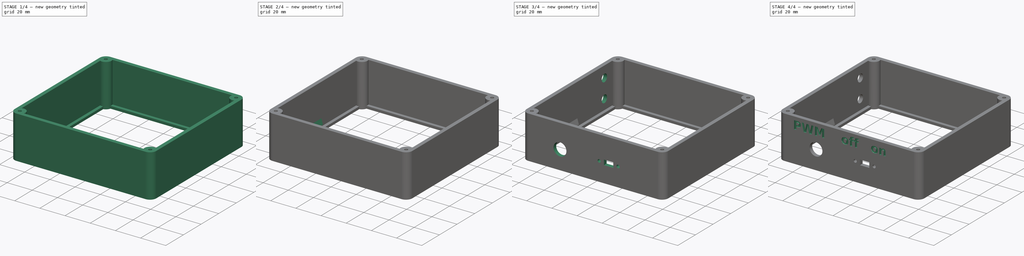
[diagram: build sequence overview — one tinted view per stage of 4, left to right]
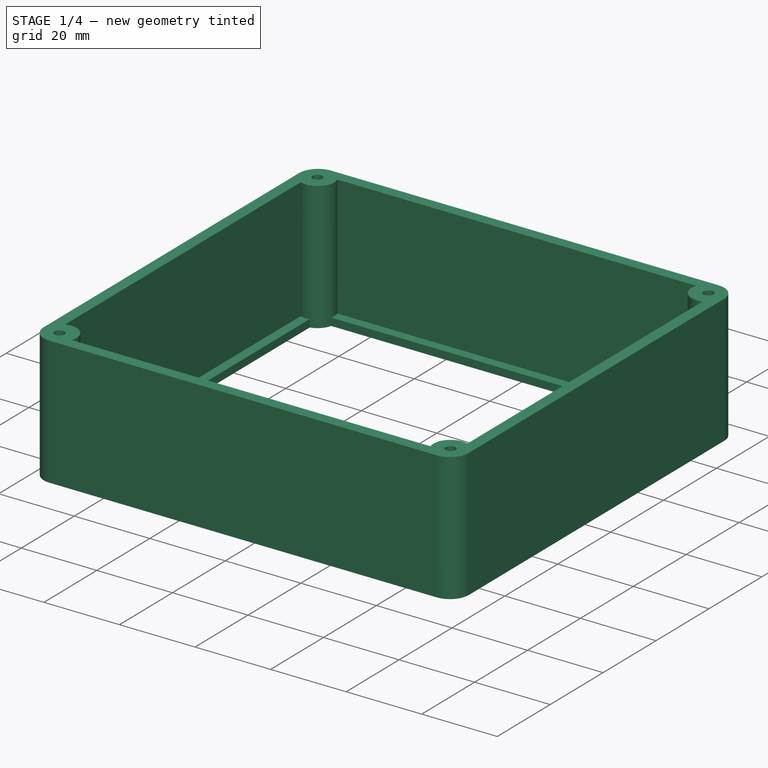
[diagram: stage 1 of 4 — iso view after this stage's code; geometry added in this stage tinted green]
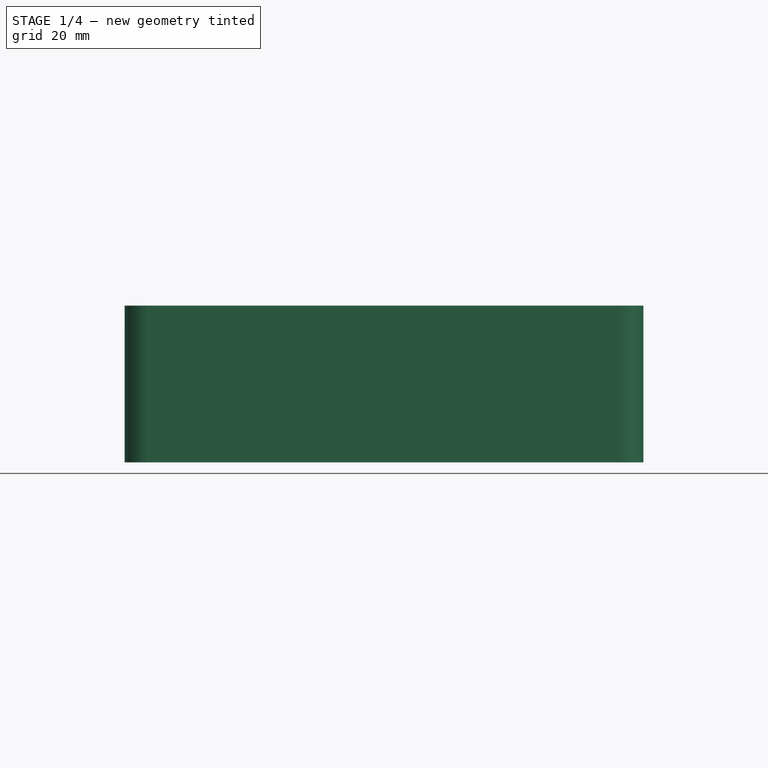
[diagram: stage 1 of 4 — front view after this stage's code; geometry added in this stage tinted green]
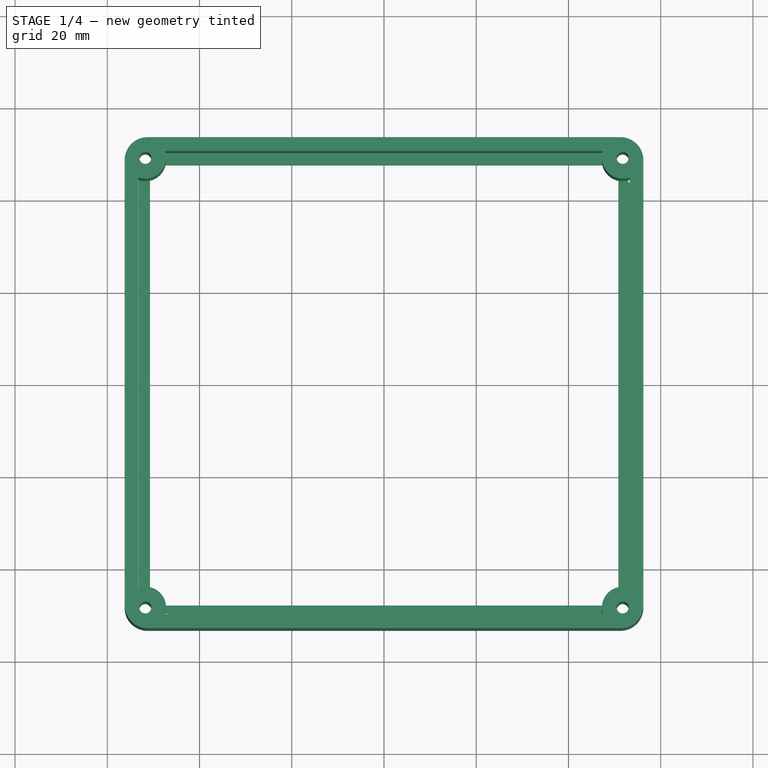
[diagram: stage 1 of 4 — top view after this stage's code; geometry added in this stage tinted green]
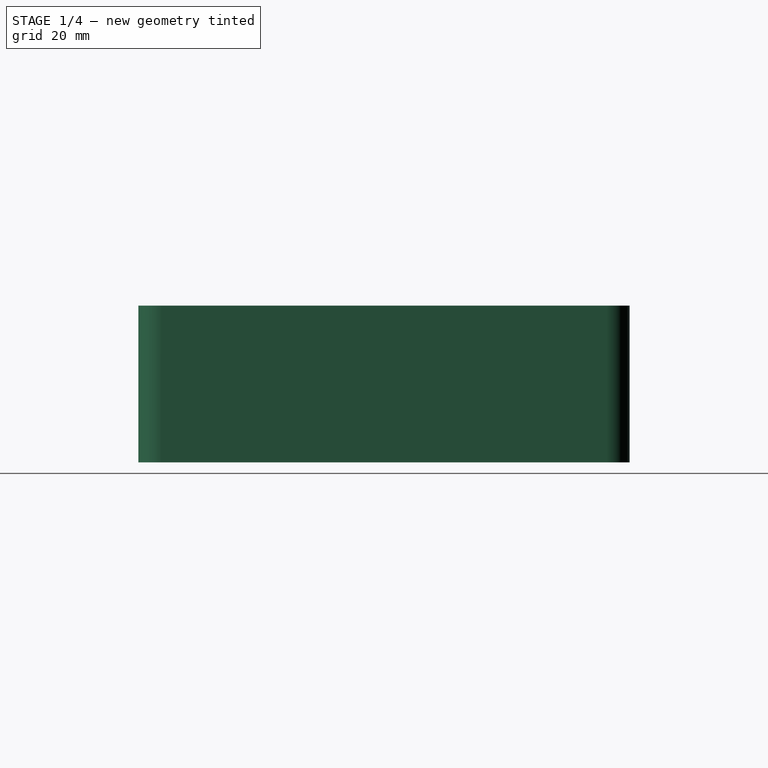
[diagram: stage 1 of 4 — right view after this stage's code; geometry added in this stage tinted green]
FCSTD DOCUMENT  (FreeCAD 0.21R33668 +26 (Git))
Label: mini-evse-housing
License: All rights reserved
LicenseURL: https://en.wikipedia.org/wiki/All_rights_reserved
objects: Sketcher::SketchObject×6, PartDesign::Pocket×5, PartDesign::Pad×4, Part::Part2DObjectPython×3, PartDesign::Body×1
note: 28 computed .brp shape members not serialized (recipe doc carries the construction recipe); baked Part::Feature solids carry a one-line shape summary decoded from their .brp

FEATURE [Sketcher::SketchObject] Sketch
  FullyConstrained = true
  MapMode = 5
  Support = -> [XY_Plane]
  sketch-geometry (22):
    g0: ArcOfCircle CenterX=-51.25 CenterY=48.25 CenterZ=0 NormalX=0 NormalY=0 NormalZ=1 AngleXU=0 Radius=5 StartAngle=1.5708 EndAngle=3.14159
    g1: LineSegment StartX=-51.25 StartY=53.25 StartZ=0 EndX=51.25 EndY=53.25 EndZ=0
    g2: ArcOfCircle CenterX=51.25 CenterY=48.25 CenterZ=0 NormalX=0 NormalY=0 NormalZ=1 AngleXU=0 Radius=5 StartAngle=1e-16 EndAngle=1.5708
    g3: LineSegment StartX=56.25 StartY=48.25 StartZ=0 EndX=56.25 EndY=-48.25 EndZ=0
    g4: ArcOfCircle CenterX=51.25 CenterY=-48.25 CenterZ=0 NormalX=0 NormalY=0 NormalZ=1 AngleXU=0 Radius=5 StartAngle=4.71239 EndAngle=6.28319
    g5: LineSegment StartX=51.25 StartY=-53.25 StartZ=0 EndX=-51.25 EndY=-53.25 EndZ=0
    g6: ArcOfCircle CenterX=-51.25 CenterY=-48.25 CenterZ=0 NormalX=0 NormalY=0 NormalZ=1 AngleXU=0 Radius=5 StartAngle=3.14159 EndAngle=4.71239
    g7: LineSegment StartX=-56.25 StartY=-48.25 StartZ=0 EndX=-56.25 EndY=48.25 EndZ=0
    g8: GeomPoint X=-56.25 Y=53.25 Z=0
    g9: GeomPoint X=56.25 Y=-53.25 Z=0
    g10: LineSegment StartX=-47.5074 StartY=50.25 StartZ=0 EndX=47.5074 EndY=50.25 EndZ=0
    g11: LineSegment StartX=53.25 StartY=44.5074 StartZ=0 EndX=53.25 EndY=-44.5074 EndZ=0
    g12: LineSegment StartX=47.5074 StartY=-50.25 StartZ=0 EndX=-47.5074 EndY=-50.25 EndZ=0
    g13: LineSegment StartX=-53.25 StartY=-44.5074 StartZ=0 EndX=-53.25 EndY=44.5074 EndZ=0
    g14: ArcOfCircle CenterX=-51.75 CenterY=-48.75 CenterZ=0 NormalX=0 NormalY=0 NormalZ=1 AngleXU=0 Radius=4.5 StartAngle=5.94335 EndAngle=8.19382
    g15: ArcOfCircle CenterX=51.75 CenterY=-48.75 CenterZ=0 NormalX=0 NormalY=0 NormalZ=1 AngleXU=0 Radius=4.5 StartAngle=1.23096 EndAngle=3.48143
    g16: ArcOfCircle CenterX=51.75 CenterY=48.75 CenterZ=0 NormalX=0 NormalY=0 NormalZ=1 AngleXU=0 Radius=4.5 StartAngle=2.80176 EndAngle=5.05223
    g17: ArcOfCircle CenterX=-51.75 CenterY=48.75 CenterZ=0 NormalX=0 NormalY=0 NormalZ=1 AngleXU=0 Radius=4.5 StartAngle=4.37255 EndAngle=6.62302
    g18: Circle CenterX=51.75 CenterY=48.75 CenterZ=0 NormalX=0 NormalY=0 NormalZ=1 AngleXU=0 Radius=1.3
    g19: Circle CenterX=-51.75 CenterY=48.75 CenterZ=0 NormalX=0 NormalY=0 NormalZ=1 AngleXU=0 Radius=1.3
    g20: Circle CenterX=-51.75 CenterY=-48.75 CenterZ=0 NormalX=0 NormalY=0 NormalZ=1 AngleXU=0 Radius=1.3
    g21: Circle CenterX=51.75 CenterY=-48.75 CenterZ=0 NormalX=0 NormalY=0 NormalZ=1 AngleXU=0 Radius=1.3
  constraints (61):
    c: Tangent(g0,g1) = 1.5708
    c: Tangent(g1,g2) = 1.5708
    c: Tangent(g2,g3) = 1.5708
    c: Tangent(g3,g4) = 1.5708
    c: Tangent(g4,g5) = 1.5708
    c: Tangent(g5,g6) = 1.5708
    c: Tangent(g6,g7) = 1.5708
    c: Tangent(g7,g0) = 1.5708
    c: Horizontal(g1)
    c: Horizontal(g5)
    c: Vertical(g3)
    c: Vertical(g7)
    c: Equal(g0,g2)
    c: Equal(g2,g4)
    c: Equal(g4,g6)
    c: PointOnObject(g8,g1)
    c: PointOnObject(g8,g7)
    c: PointOnObject(g9,g3)
    c: PointOnObject(g9,g5)
    c: Symmetric(g0,g3,g-1)
    c: DistanceX(g0,g2) = 112.5
    c: DistanceY(g4,g1) = 106.5
    c: Radius(g2) = 5
    c: Horizontal(g10)
    c: Horizontal(g12)
    c: Vertical(g11)
    c: Vertical(g13)
    c: Coincident(g14,g13)
    c: Coincident(g14,g12)
    c: Diameter(g15) = 9
    c: DistanceX(g4,g15) = 0.5
    c: DistanceY(g15,g4) = 0.5
    c: Coincident(g15,g12)
    c: Coincident(g11,g15)
    c: DistanceX(g11,g3) = 3
    c: DistanceY(g4,g12) = 3
    c: Diameter(g16) = 9
    c: DistanceX(g2,g16) = 0.5
    c: DistanceY(g2,g16) = 0.5
    c: Coincident(g16,g10)
    c: Coincident(g16,g11)
    c: DistanceX(g14,g6) = 0.5
    c: DistanceY(g14,g6) = 0.5
    c: Diameter(g17) = 9
    c: DistanceX(g17,g0) = 0.5
    c: DistanceY(g0,g17) = 0.5
    c: Coincident(g17,g13)
    c: Coincident(g17,g10)
    c: DistanceX(g0,g13) = 3
    c: DistanceY(g10,g0) = 3
    c: Radius(g14) = 4.5
    c: Coincident(g18,g16)
    c: Radius(g18) = 1.3
    c: Coincident(g19,g17)
    c: Diameter(g19) = 2.6
    c: Coincident(g20,g14)
    c: Diameter(g20) = 2.6
    c: Coincident(g21,g15)
    c: Diameter(g21) = 2.6
    c: DistanceX(g13,g11) = 106.5
    c: DistanceY(g12,g10) = 100.5
FEATURE [PartDesign::Pad] Pad
  Direction = (0,0,1)
  Length = 34
  Length2 = 10
  Profile = -> Sketch
  ReferenceAxis = -> Sketch [N_Axis]
  Type = 0
FEATURE [Sketcher::SketchObject] Sketch001
  FullyConstrained = false
  MapMode = 5
  Support = -> [XY_Plane]
  sketch-geometry (15):
    g0: LineSegment StartX=-50.8049 StartY=47.8821 StartZ=0 EndX=-47.9171 EndY=50.1921 EndZ=0
    g1: LineSegment StartX=-47.9171 StartY=50.1921 StartZ=0 EndX=47.1461 EndY=50.1921 EndZ=0
    g2: LineSegment StartX=53.3285 StartY=43.6387 StartZ=0 EndX=53.3285 EndY=-44.6539 EndZ=0
    g3: LineSegment StartX=53.3285 StartY=-44.6539 StartZ=0 EndX=49.0489 EndY=-50.2745 EndZ=0
    g4: LineSegment StartX=49.0489 StartY=-50.2745 StartZ=0 EndX=-45.4929 EndY=-50.2745 EndZ=0
    g5: LineSegment StartX=-53.2321 StartY=-44.6096 StartZ=0 EndX=-53.2321 EndY=44.5653 EndZ=0
    g6: LineSegment StartX=-53.2321 StartY=44.5653 StartZ=0 EndX=-50.8049 EndY=47.8821 EndZ=0
    g7: LineSegment StartX=-50.7321 StartY=47.6921 StartZ=0 EndX=50.8285 EndY=47.6921 EndZ=0
    g8: LineSegment StartX=50.8285 StartY=47.6921 StartZ=0 EndX=50.8285 EndY=-47.7745 EndZ=0
    g9: LineSegment StartX=50.8285 StartY=-47.7745 StartZ=0 EndX=-50.7321 EndY=-47.7745 EndZ=0
    g10: LineSegment StartX=-50.7321 StartY=-47.7745 StartZ=0 EndX=-50.7321 EndY=47.6921 EndZ=0
    g11: LineSegment StartX=47.1461 StartY=50.1921 StartZ=0 EndX=50.8955 EndY=47.792 EndZ=0
    g12: LineSegment StartX=50.8955 StartY=47.792 StartZ=0 EndX=53.3285 EndY=43.6387 EndZ=0
    g13: LineSegment StartX=-45.4929 StartY=-50.2745 StartZ=0 EndX=-50.9549 EndY=-47.8596 EndZ=0
    g14: LineSegment StartX=-50.9549 StartY=-47.8596 StartZ=0 EndX=-53.2321 EndY=-44.6096 EndZ=0
  constraints (27):
    c: Coincident(g0,g1)
    c: Horizontal(g1)
    c: Coincident(g1,g11)
    c: Coincident(g12,g2)
    c: Vertical(g2)
    c: Coincident(g2,g3)
    c: Coincident(g3,g4)
    c: Horizontal(g4)
    c: Coincident(g4,g13)
    c: Coincident(g14,g5)
    c: Vertical(g5)
    c: Coincident(g5,g6)
    c: Coincident(g0,g6)
    c: Coincident(g7,g8)
    c: Coincident(g8,g9)
    c: Coincident(g9,g10)
    c: Coincident(g10,g7)
    c: Horizontal(g7)
    c: Horizontal(g9)
    c: Vertical(g8)
    c: Vertical(g10)
    c: DistanceY(g7,g1) = 2.5
    c: DistanceX(g5,g7) = 2.5
    c: DistanceX(g8,g2) = 2.5
    c: DistanceY(g3,g8) = 2.5
    c: Coincident(g11,g12)
    c: Coincident(g13,g14)
FEATURE [PartDesign::Pad] Pad001
  BaseFeature = -> Pad
  Direction = (0,0,1)
  Length = 2
  Length2 = 10
  Profile = -> Sketch001
  ReferenceAxis = -> Sketch001 [N_Axis]
  Type = 0
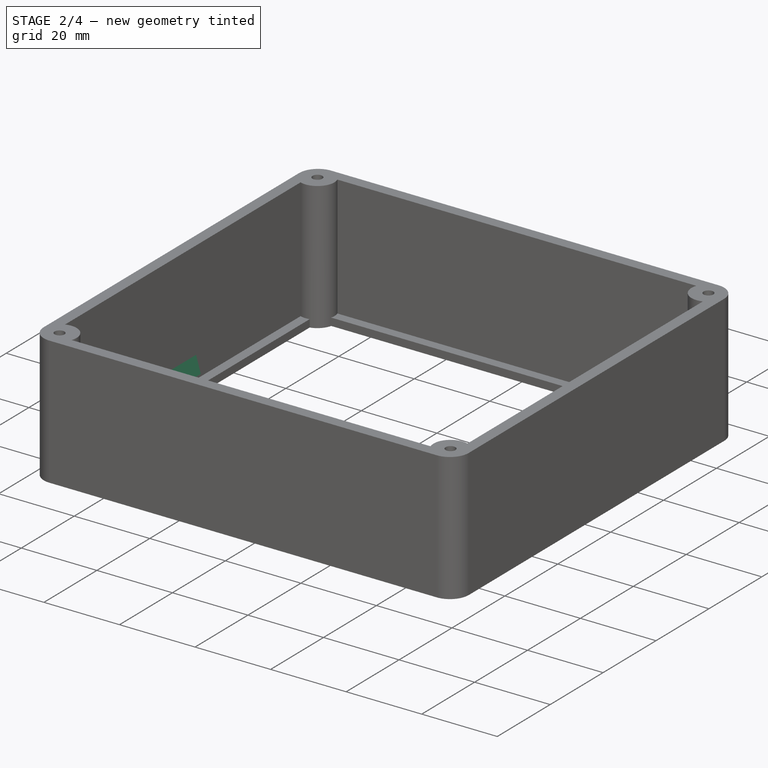
[diagram: stage 2 of 4 — iso view after this stage's code; geometry added in this stage tinted green]
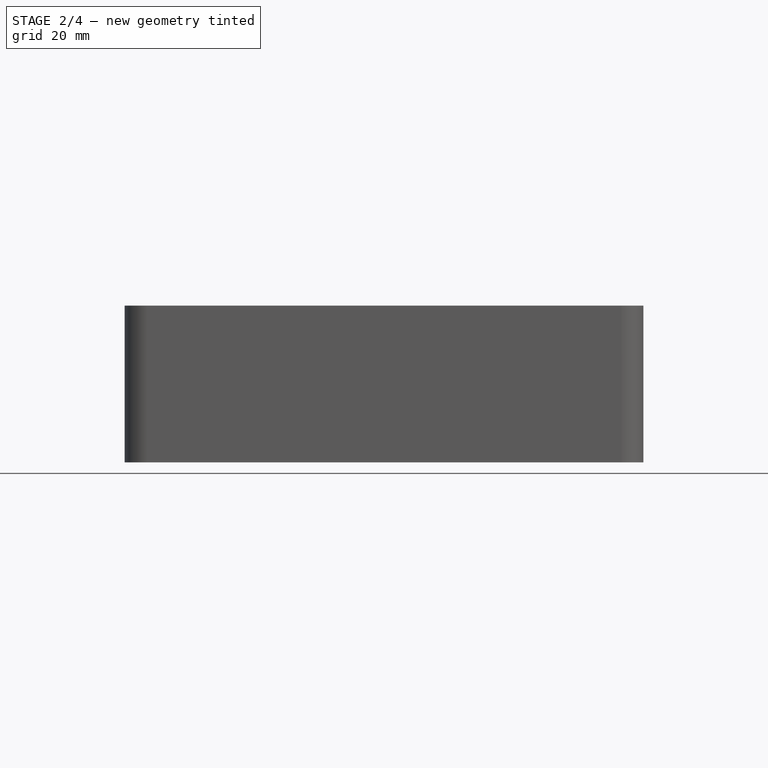
[diagram: stage 2 of 4 — front view after this stage's code; geometry added in this stage tinted green]
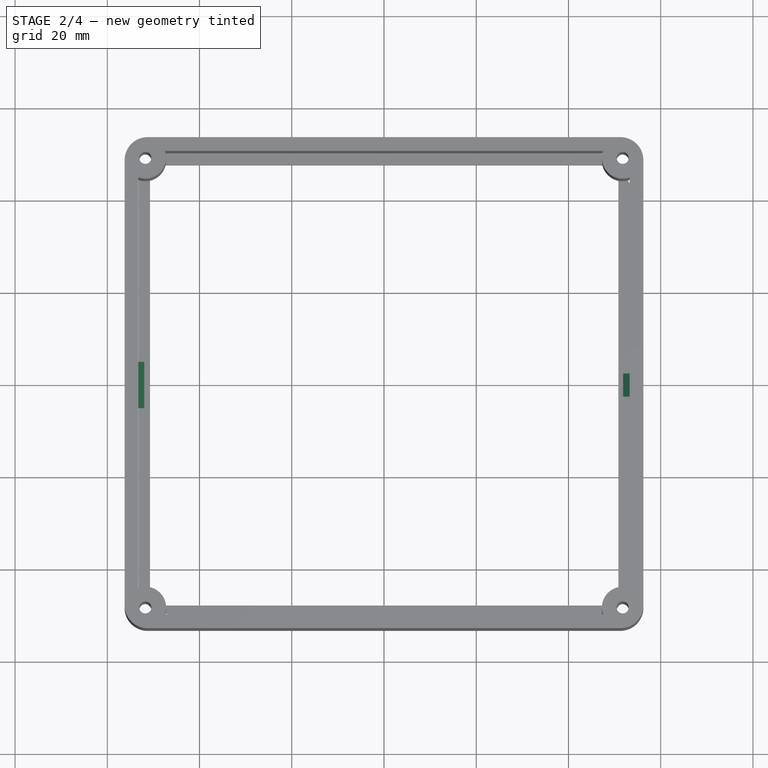
[diagram: stage 2 of 4 — top view after this stage's code; geometry added in this stage tinted green]
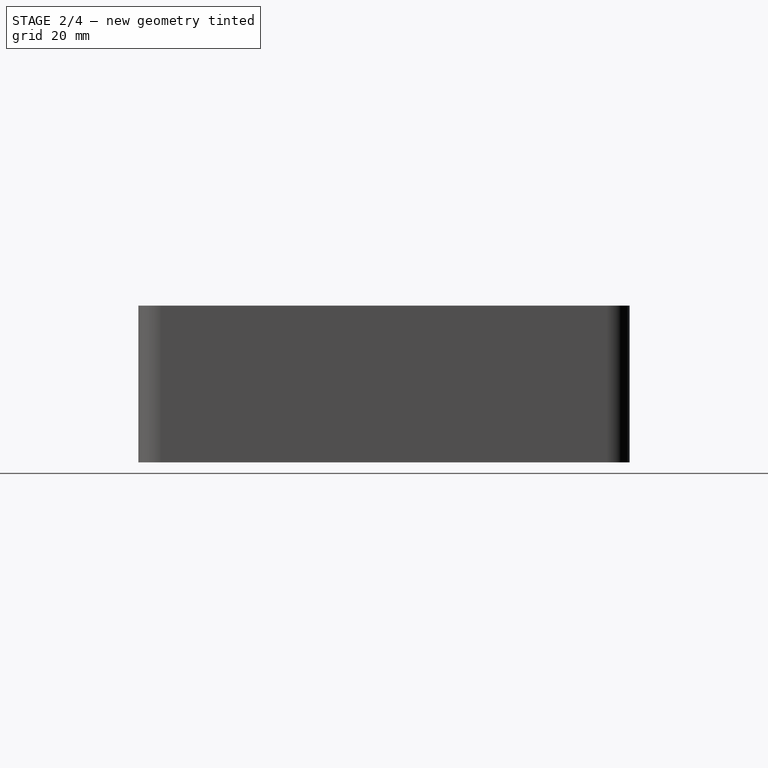
[diagram: stage 2 of 4 — right view after this stage's code; geometry added in this stage tinted green]
FEATURE [Sketcher::SketchObject] Sketch002
  FullyConstrained = false
  MapMode = 5
  Placement = pos=(0,0,0) rot=(1,0,0;1.5708rad)
  Support = -> [XZ_Plane]
  sketch-geometry (3):
    g0: LineSegment StartX=53.3083 StartY=6.17698 StartZ=0 EndX=51.8532 EndY=3.65944 EndZ=0
    g1: LineSegment StartX=51.8532 StartY=3.65944 StartZ=0 EndX=53.3532 EndY=3.65944 EndZ=0
    g2: LineSegment StartX=53.3532 StartY=3.65944 StartZ=0 EndX=53.3083 EndY=6.17698 EndZ=0
  constraints (5):
    c: Coincident(g0,g1)
    c: Horizontal(g1)
    c: Coincident(g1,g2)
    c: Coincident(g2,g0)
    c: DistanceX(g1,g1) = 1.5
FEATURE [PartDesign::Pad] Pad002
  BaseFeature = -> Pad001
  Direction = (0,-1,2e-16)
  Length = 5
  Length2 = 10
  Midplane = true
  Profile = -> Sketch002
  ReferenceAxis = -> Sketch002 [N_Axis]
  Type = 0
FEATURE [Sketcher::SketchObject] Sketch003
  FullyConstrained = false
  MapMode = 5
  Placement = pos=(0,0,0) rot=(1,0,0;1.5708rad)
  Support = -> [XZ_Plane]
  sketch-geometry (3):
    g0: LineSegment StartX=-53.5002 StartY=8.67917 StartZ=0 EndX=-53.5002 EndY=3.6 EndZ=0
    g1: LineSegment StartX=-53.5002 StartY=3.6 StartZ=0 EndX=-52.0002 EndY=3.6 EndZ=0
    g2: LineSegment StartX=-52.0002 StartY=3.6 StartZ=0 EndX=-53.5002 EndY=8.67917 EndZ=0
  constraints (7):
    c: Vertical(g0)
    c: Coincident(g0,g1)
    c: Horizontal(g1)
    c: Coincident(g1,g2)
    c: Coincident(g2,g0)
    c: DistanceY(g-1,g1) = 3.6
    c: DistanceX(g0,g1) = 1.5
FEATURE [PartDesign::Pad] Pad003
  BaseFeature = -> Pad002
  Direction = (0,-1,2e-16)
  Length = 10
  Length2 = 10
  Midplane = true
  Profile = -> Sketch003
  ReferenceAxis = -> Sketch003 [N_Axis]
  Type = 0
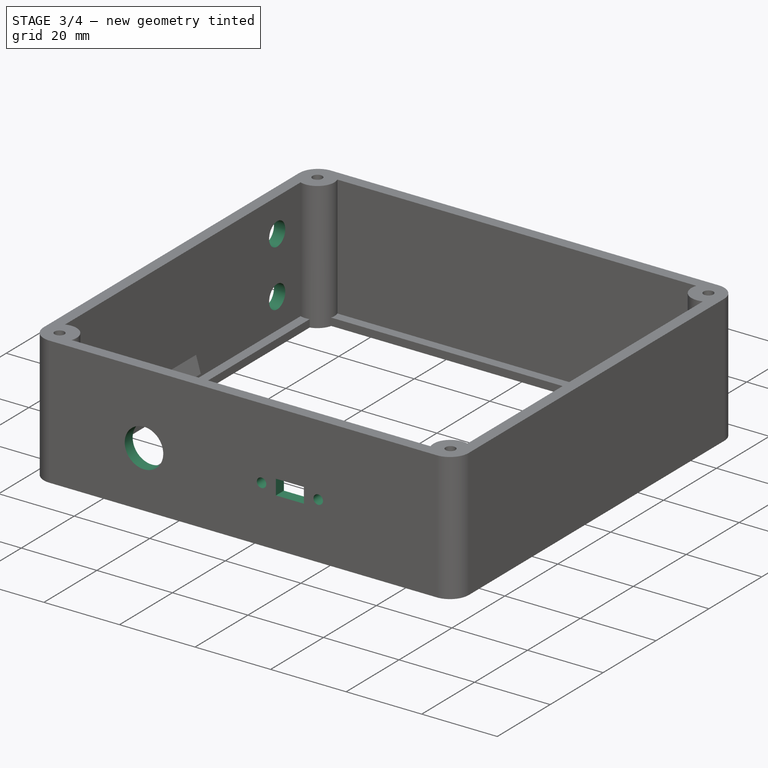
[diagram: stage 3 of 4 — iso view after this stage's code; geometry added in this stage tinted green]
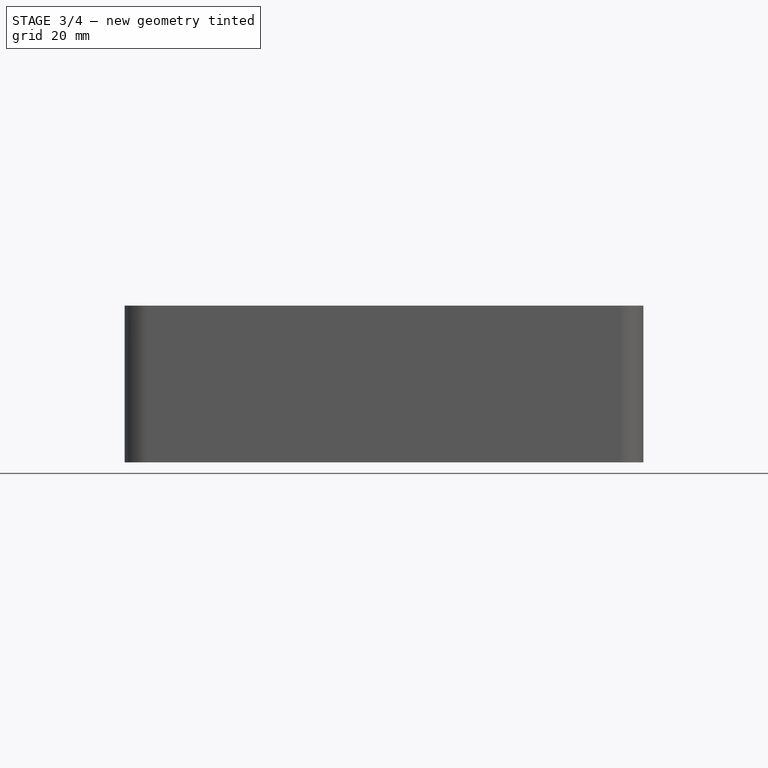
[diagram: stage 3 of 4 — front view after this stage's code; geometry added in this stage tinted green]
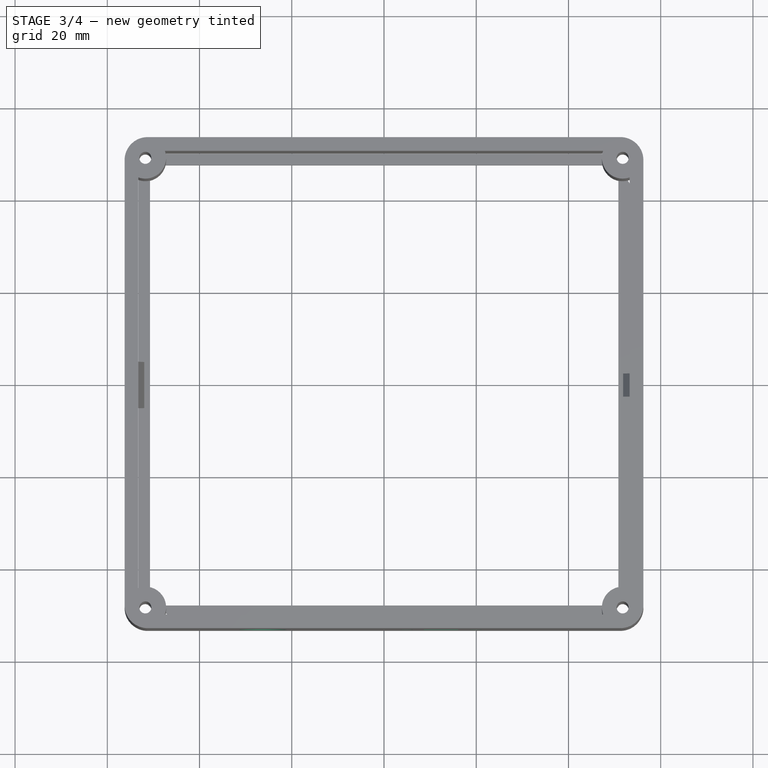
[diagram: stage 3 of 4 — top view after this stage's code; geometry added in this stage tinted green]
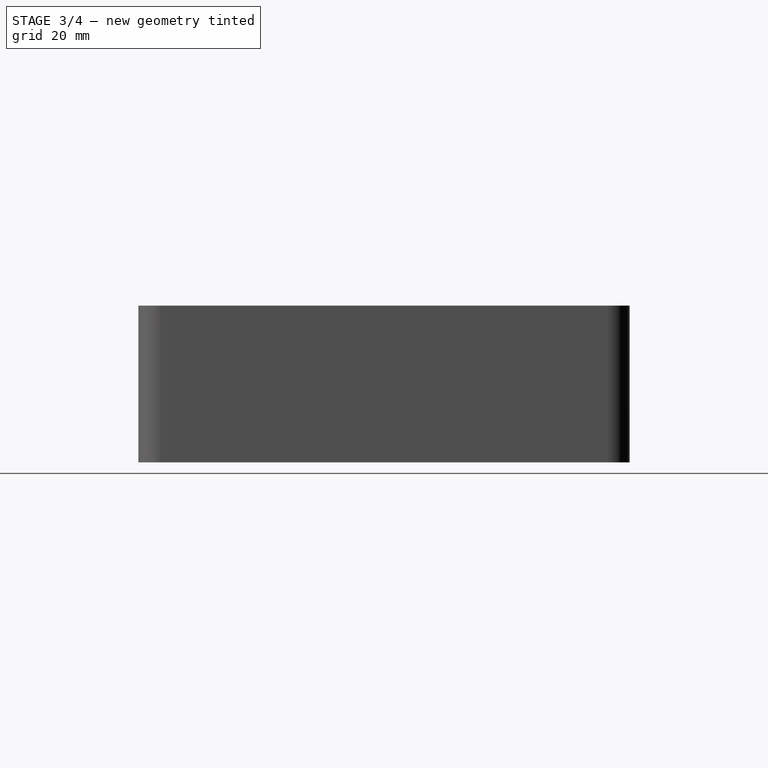
[diagram: stage 3 of 4 — right view after this stage's code; geometry added in this stage tinted green]
FEATURE [Sketcher::SketchObject] Sketch004
  ExternalGeometry = -> [Pad003]
  FullyConstrained = false
  MapMode = 5
  Placement = pos=(0,-53.25,0) rot=(1,0,0;1.5708rad)
  Support = -> [Pad003]
  sketch-geometry (7):
    g0: Circle CenterX=-26.25 CenterY=15 CenterZ=0 NormalX=0 NormalY=0 NormalZ=1 AngleXU=0 Radius=5.1
    g1: Circle CenterX=4.87645 CenterY=15 CenterZ=0 NormalX=0 NormalY=0 NormalZ=1 AngleXU=0 Radius=1.25
    g2: Circle CenterX=19.8765 CenterY=15 CenterZ=0 NormalX=0 NormalY=0 NormalZ=1 AngleXU=0 Radius=1.25
    g3: LineSegment StartX=8.67645 StartY=17 StartZ=0 EndX=16.0765 EndY=17 EndZ=0
    g4: LineSegment StartX=16.0765 StartY=17 StartZ=0 EndX=16.0765 EndY=13 EndZ=0
    g5: LineSegment StartX=16.0765 StartY=13 StartZ=0 EndX=8.67645 EndY=13 EndZ=0
    g6: LineSegment StartX=8.67645 StartY=13 StartZ=0 EndX=8.67645 EndY=17 EndZ=0
  constraints (20):
    c: DistanceX(g-3,g0) = 30
    c: DistanceY(g-1,g0) = 15
    c: Coincident(g3,g4)
    c: Coincident(g4,g5)
    c: Coincident(g5,g6)
    c: Coincident(g6,g3)
    c: Horizontal(g3)
    c: Horizontal(g5)
    c: Vertical(g4)
    c: Vertical(g6)
    c: Diameter(g1) = 2.5
    c: Diameter(g2) = 2.5
    c: Horizontal(g1,g2)
    c: DistanceX(g1,g2) = 15
    c: DistanceX(g1,g3) = 3.8
    c: DistanceX(g3,g2) = 3.8
    c: DistanceY(g4,g2) = 2
    c: DistanceY(g2,g3) = 2
    c: Horizontal(g0,g1)
    c: Diameter(g0) = 10.2
FEATURE [PartDesign::Pocket] Pocket
  BaseFeature = -> Pad003
  Direction = (0,1,-2e-16)
  Length = 5
  Length2 = 5
  Profile = -> Sketch004
  ReferenceAxis = -> Sketch004 [N_Axis]
  Type = 0
FEATURE [Sketcher::SketchObject] Sketch005
  FullyConstrained = false
  MapMode = 5
  Placement = pos=(-56.25,0,0) rot=(0.57735,-0.57735,-0.57735;2.0944rad)
  Support = -> [Pocket]
  sketch-geometry (2):
    g0: Circle CenterX=-35.6781 CenterY=25.0458 CenterZ=0 NormalX=0 NormalY=0 NormalZ=1 AngleXU=0 Radius=3.05
    g1: Circle CenterX=-35.6781 CenterY=10.0458 CenterZ=0 NormalX=0 NormalY=0 NormalZ=1 AngleXU=0 Radius=3.05
  constraints (4):
    c: Diameter(g0) = 6.1
    c: Equal(g1,g0)
    c: Vertical(g0,g1)
    c: DistanceY(g1,g0) = 15
FEATURE [PartDesign::Pocket] Pocket001
  BaseFeature = -> Pocket
  Direction = (1,0,0)
  Length = 10
  Length2 = 5
  Profile = -> Sketch005
  ReferenceAxis = -> Sketch005 [N_Axis]
  Type = 0
FEATURE [Part::Part2DObjectPython] ShapeString  # Draft 2D object (typed FeaturePython)
  FontFile = C:/Program Files/FreeCAD 0.21/bin/Lib/site-packages/matplotlib/mpl-data/fonts/ttf/DejaVuSans-Bold.ttf
  MakeFace = true
  Placement = pos=(-56.25,27.25,13.54) rot=(0.57735,-0.57735,-0.57735;2.0944rad)
  Size = 10
  String = mini EVSE
  Tracking = 0
FEATURE [PartDesign::Pocket] Pocket002  label="pocket_StringMiniEVSE"
  BaseFeature = -> Pocket001
  Direction = (1,0,0)
  Length = 1
  Length2 = 5
  Profile = -> ShapeString
  ReferenceAxis = -> ShapeString [N_Axis]
  Type = 0
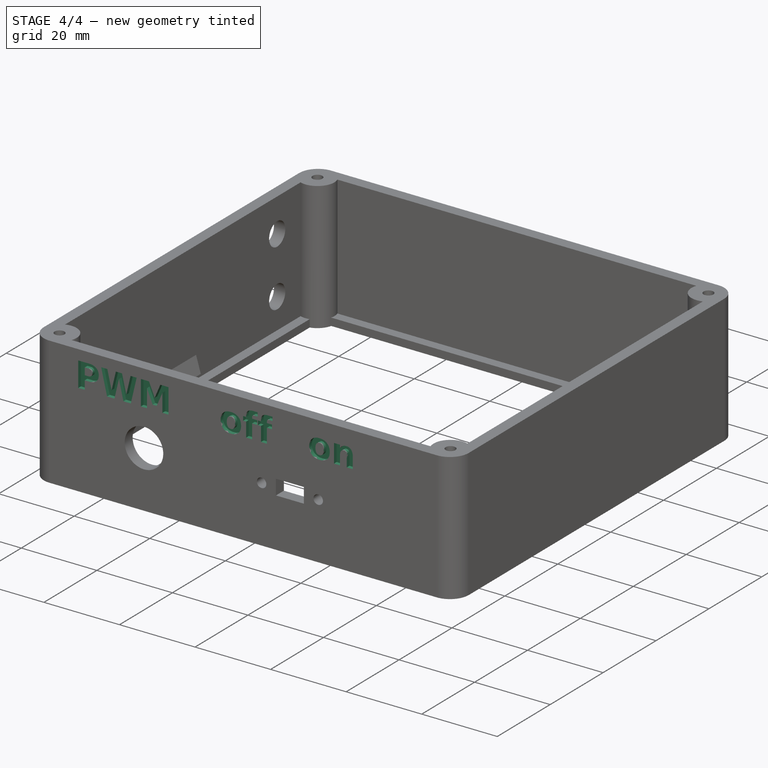
[diagram: stage 4 of 4 — iso view after this stage's code; geometry added in this stage tinted green]
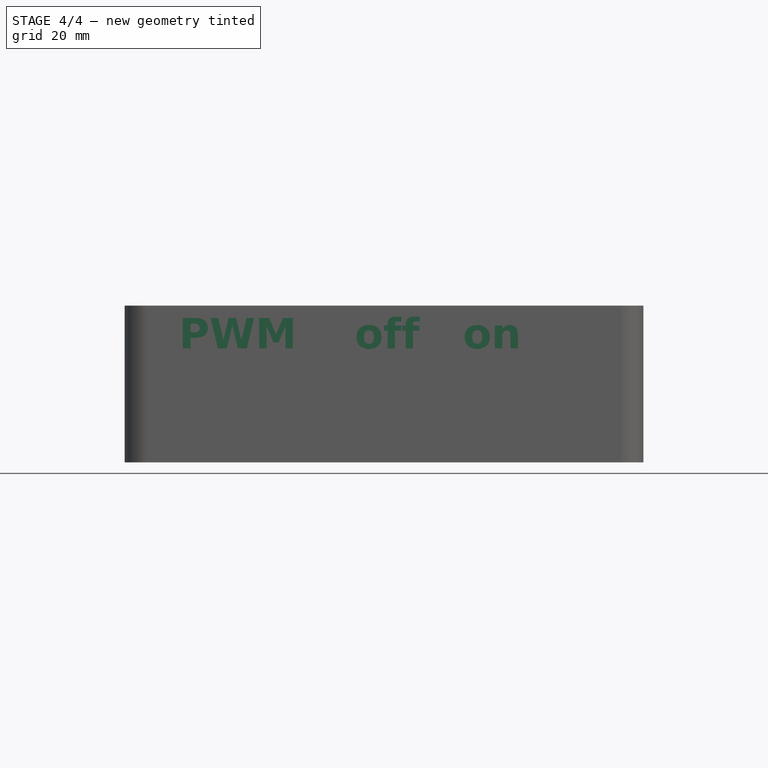
[diagram: stage 4 of 4 — front view after this stage's code; geometry added in this stage tinted green]
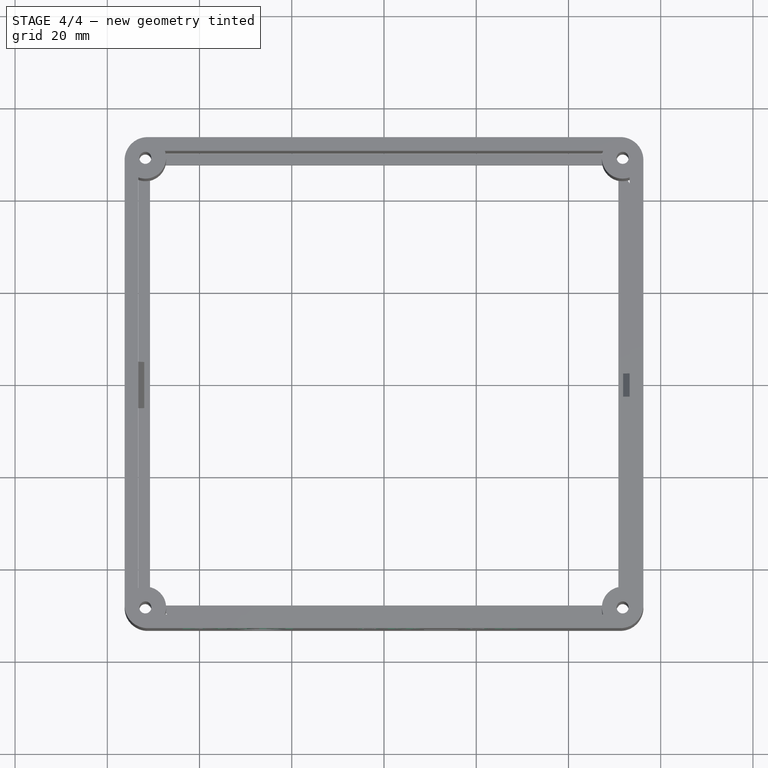
[diagram: stage 4 of 4 — top view after this stage's code; geometry added in this stage tinted green]
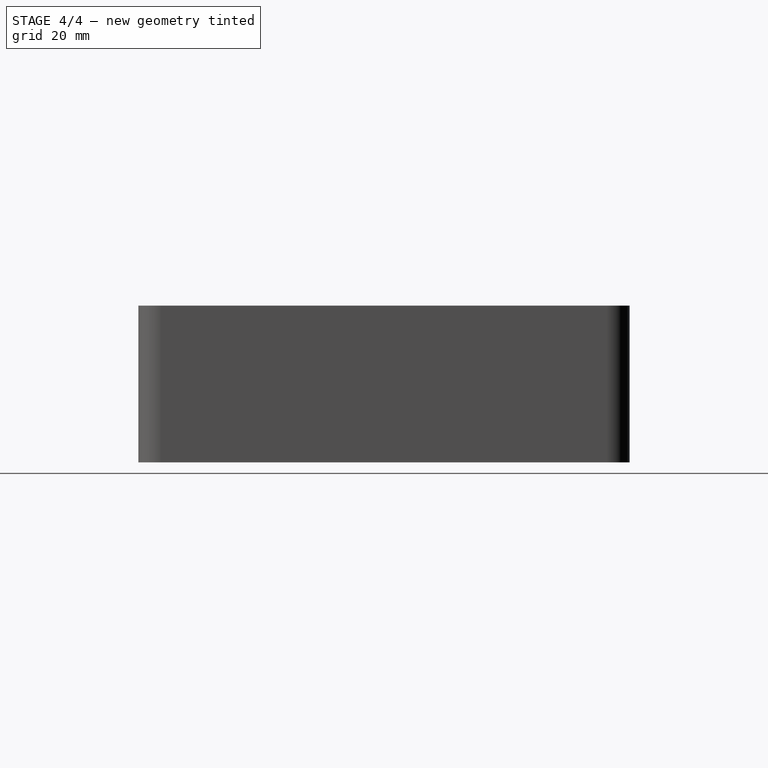
[diagram: stage 4 of 4 — right view after this stage's code; geometry added in this stage tinted green]
FEATURE [Part::Part2DObjectPython] ShapeString001  # Draft 2D object (typed FeaturePython)
  FontFile = C:/Program Files/FreeCAD 0.21/bin/Lib/site-packages/matplotlib/mpl-data/fonts/ttf/DejaVuSans-Bold.ttf
  MakeFace = true
  Placement = pos=(-44.46,-53.25,24.73) rot=(1,0,0;1.5708rad)
  Size = 7
  String = PWM    off   on
  Tracking = 0
FEATURE [PartDesign::Pocket] Pocket003
  BaseFeature = -> Pocket002
  Direction = (0,1,-2e-16)
  Length = 1
  Length2 = 5
  Profile = -> ShapeString001
  ReferenceAxis = -> ShapeString001 [N_Axis]
  Type = 0
FEATURE [Part::Part2DObjectPython] ShapeString002  # Draft 2D object (typed FeaturePython)
  FontFile = C:/Program Files/FreeCAD 0.21/bin/Lib/site-packages/matplotlib/mpl-data/fonts/ttf/DejaVuSans-Bold.ttf
  MakeFace = true
  Placement = pos=(-56.25,48.09,28.98) rot=(-0.707107,0,0.707107;3.14159rad)
  Size = 5
  String = CP  PE
  Tracking = 0
FEATURE [PartDesign::Pocket] Pocket004
  BaseFeature = -> Pocket003
  Direction = (1,0,0)
  Length = 0.5
  Length2 = 5
  Profile = -> ShapeString002
  ReferenceAxis = -> ShapeString002 [N_Axis]
  Type = 0
FEATURE [PartDesign::Body] Body  label="Körper"
  Group = -> [Sketch,Pad,Sketch001,Pad001,Sketch002,Pad002,Sketch003,Pad003,Sketch004,Pocket,Sketch005,Pocket001,ShapeString,Pocket002,ShapeString001,Pocket003,ShapeString002,Pocket004]
  Origin = -> Origin
  Tip = -> Pocket004
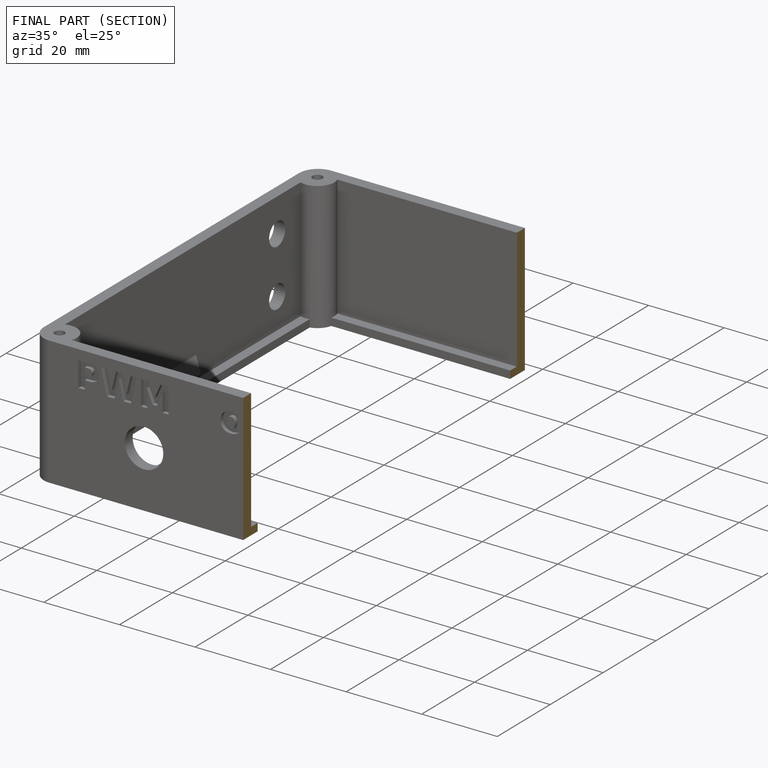
[diagram: finished part — half-section view (interior)]
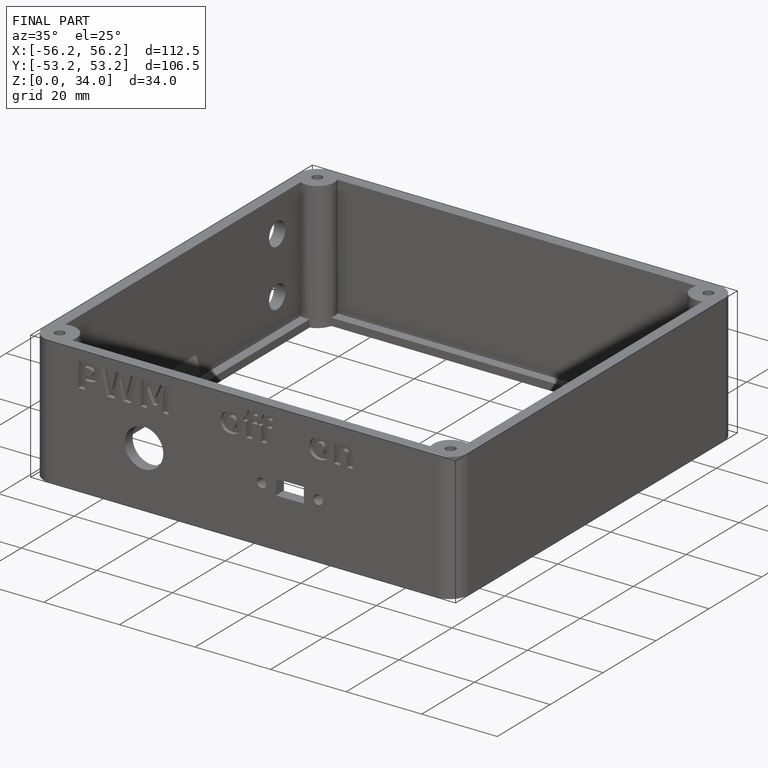
[diagram: finished part — iso view with bounding-box wireframe]
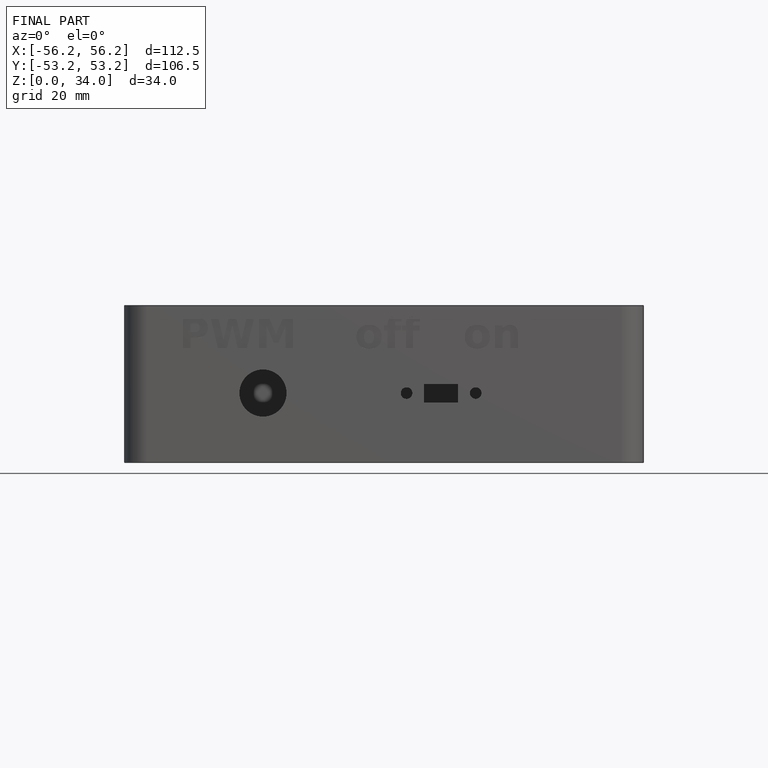
[diagram: finished part — front view with bounding-box wireframe]
